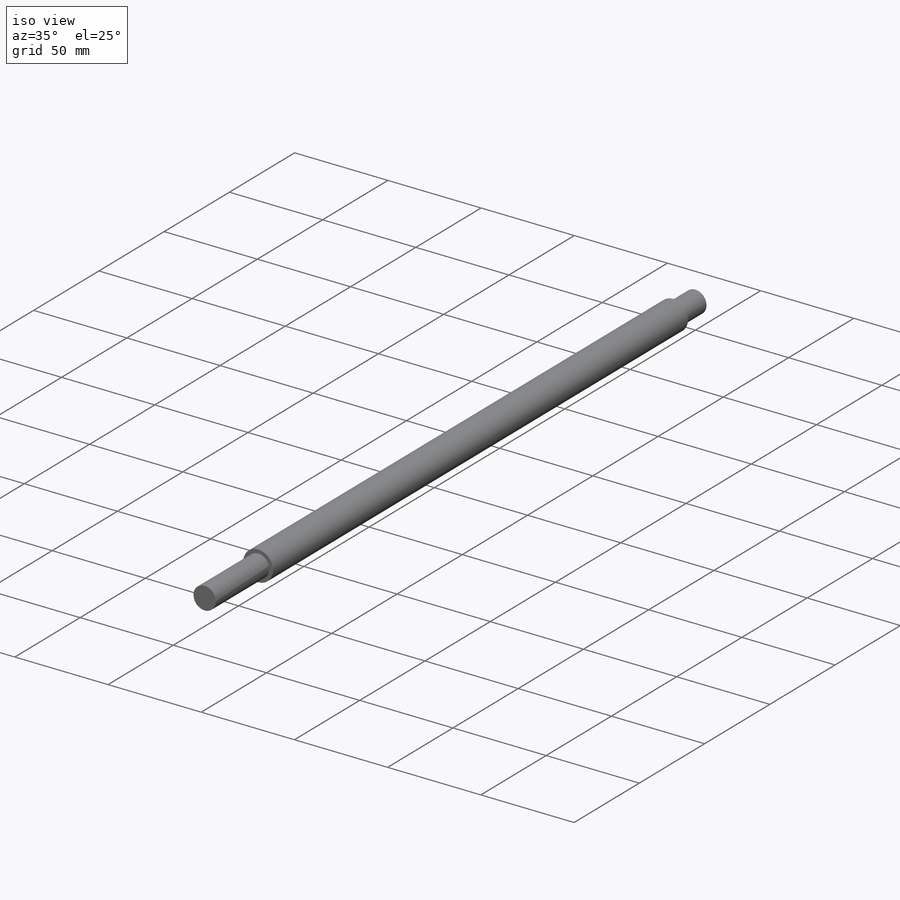
[diagram: iso view]
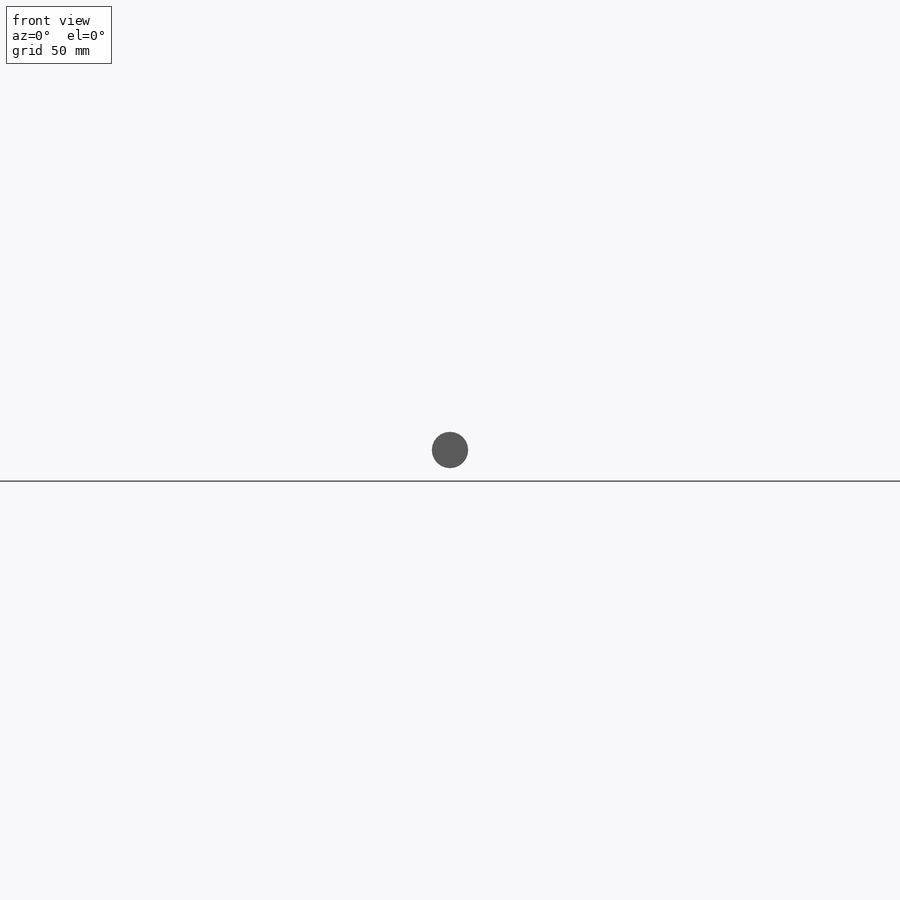
[diagram: front view]
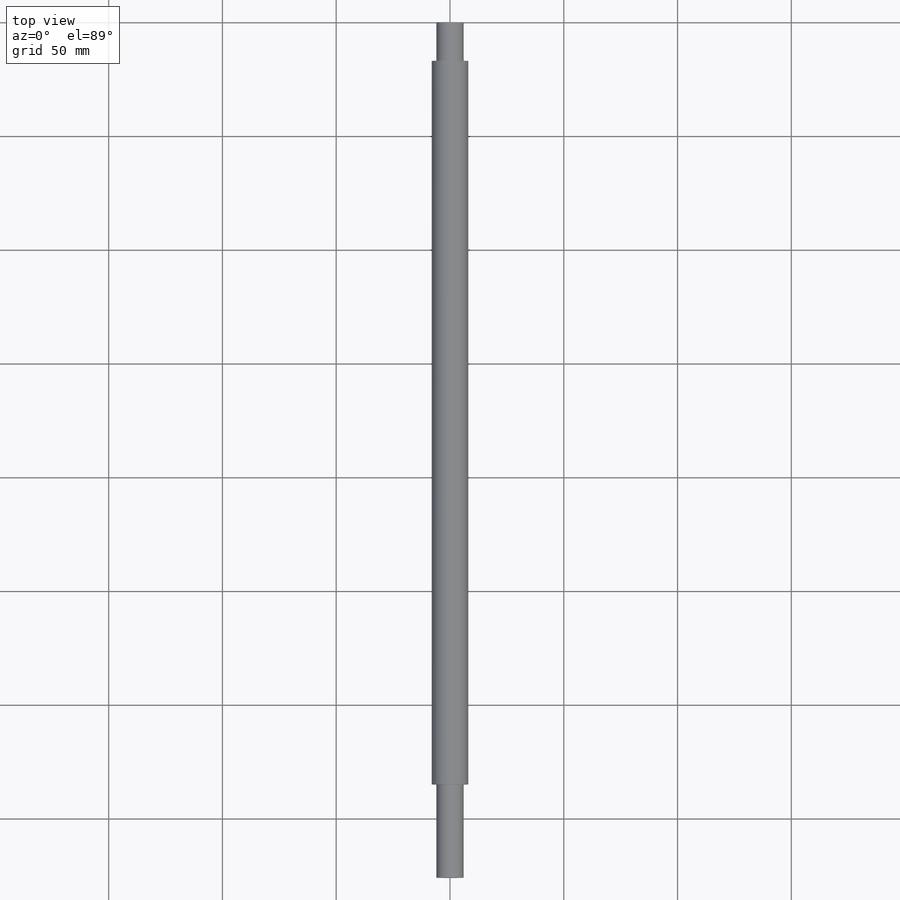
[diagram: top view]
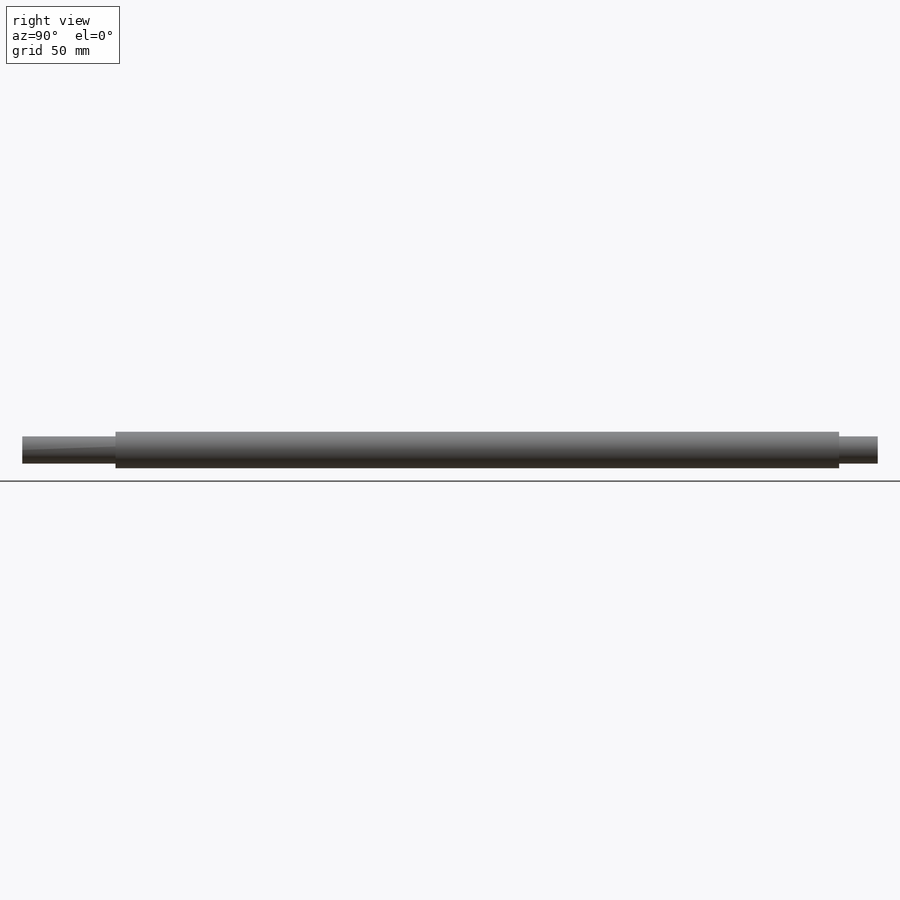
[diagram: right view]
SOLIDWORKS PART (.sldprt)
format: sldprt  version: not decoded by parser v0  size: 188,416 bytes
history: native  units: mm
features: sketch x6, extrude x4, cut_extrude x2, material x1 (+12 scaffold rows collapsed)
feature tree (25):
  scaffold x12  (default folders/planes/origin — collapsed)
  material  "7079 Alloy"
  sketch  "Sketch1"  dims[D1=~3.74537mm]
  extrude  "Extrude1"  Depth=366mm
  sketch  "Sketch3"  dims[D1=~4.112154mm]
  cut_extrude  "Cut-Extrude1"  Depth=34mm
  sketch  "Sketch4"  dims[D1=~7.885002mm]
  cut_extrude  "Cut-Extrude2"  Depth=20mm
  sketch  "Sketch5"
  extrude  "Extrude2"  Depth=10mm
  sketch  "Sketch7"
  extrude  "Extrude3"  Depth=3mm
  sketch  "Sketch8"
  extrude  "Extrude4"  Depth=3mm
decode coverage: 9 of 12 modeling features carry decoded parameters
note: ~ marks probable driven/reference dimensions
note: suppression state not decoded; provenance and decode notes live in map.json
